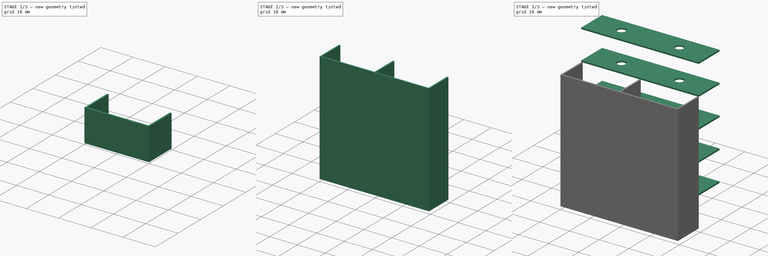
[diagram: build sequence overview — one tinted view per stage of 3, left to right]
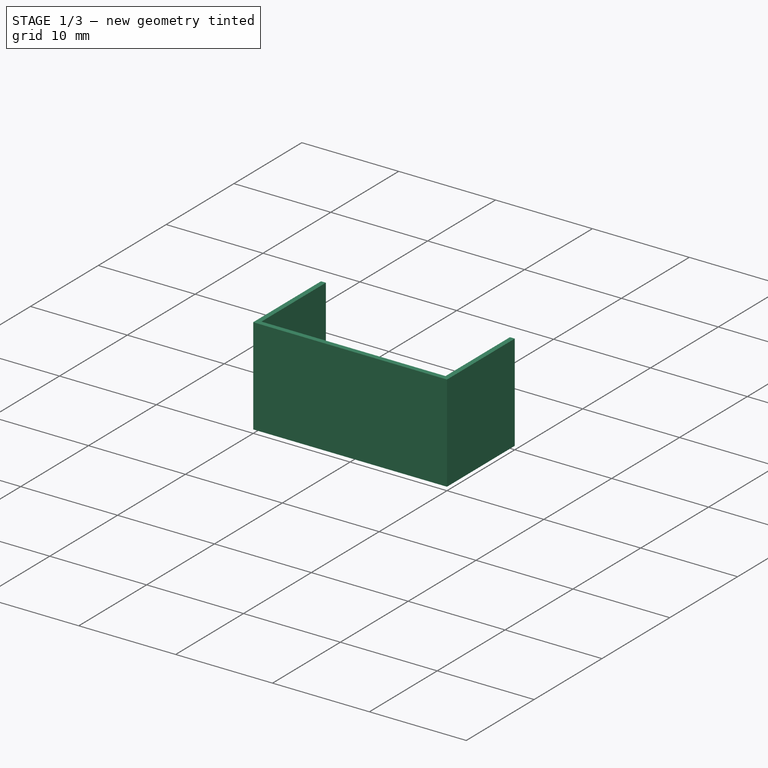
[diagram: stage 1 of 3 — iso view after this stage's code; geometry added in this stage tinted green]
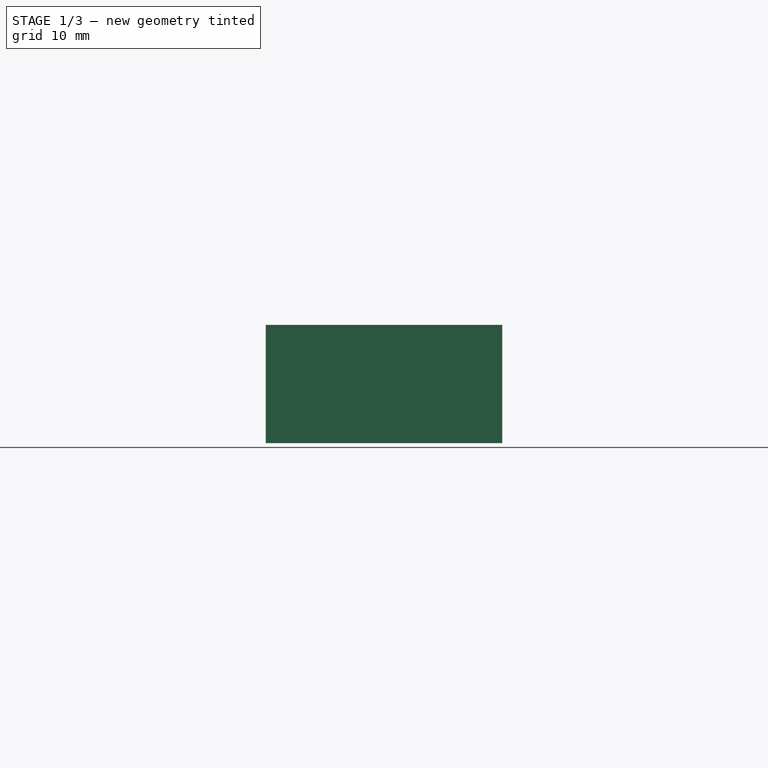
[diagram: stage 1 of 3 — front view after this stage's code; geometry added in this stage tinted green]
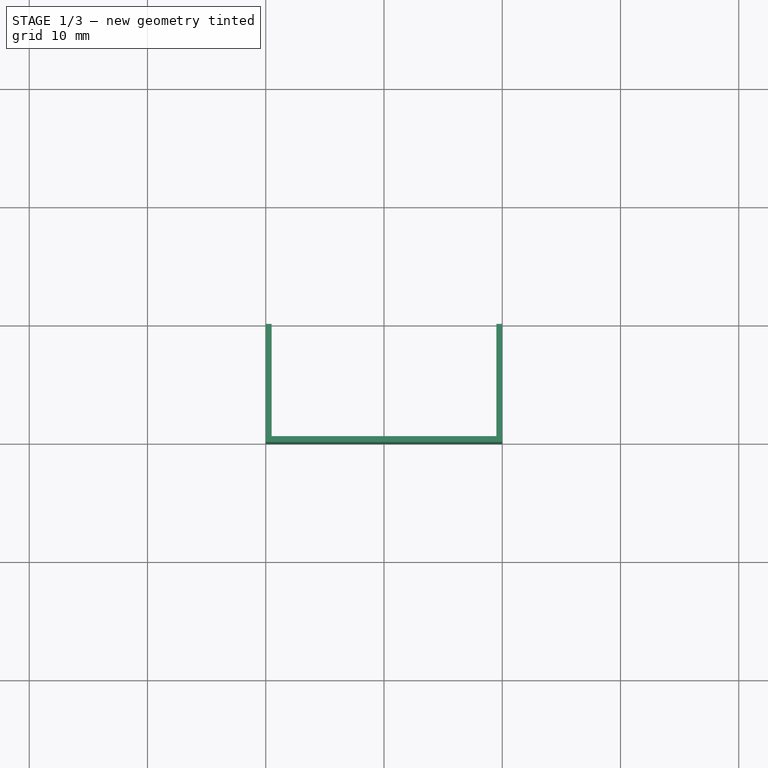
[diagram: stage 1 of 3 — top view after this stage's code; geometry added in this stage tinted green]
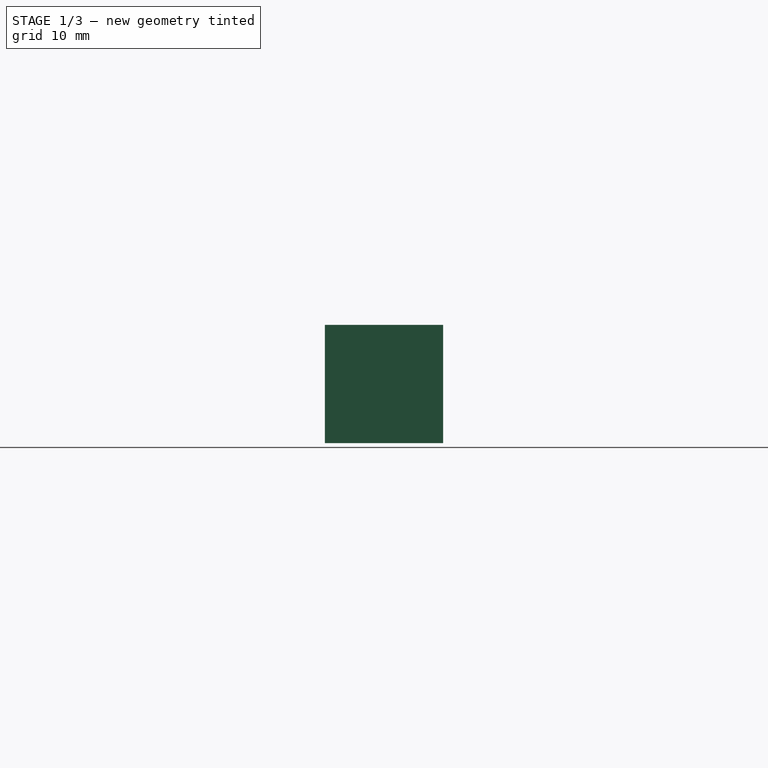
[diagram: stage 1 of 3 — right view after this stage's code; geometry added in this stage tinted green]
FCSTD DOCUMENT  (FreeCAD 0.19R)
Label: ARMARIO
License: All rights reserved
LicenseURL: http://en.wikipedia.org/wiki/All_rights_reserved
objects: Sketcher::SketchObject×2, Part::Extrusion×2, Part::FeaturePython×2, Spreadsheet::Sheet×1, Part::MultiFuse×1
note: 7 computed .brp shape members not serialized (recipe doc carries the construction recipe); baked Part::Feature solids carry a one-line shape summary decoded from their .brp

FEATURE [Spreadsheet::Sheet] Spreadsheet
  cells = A1=largura; B1(largura)=10; A2=altura; B2(altura)==largura; A3=comprimento; B3(comprimento)==2 * largura; A4=espessura; B4(espessura)==0.05 * largura; A5=furo; B5(furo)==espessura
FEATURE [Sketcher::SketchObject] Sketch
  expr: Constraints[10] = Spreadsheet.largura
  expr: Constraints[9] = Spreadsheet.comprimento
  sketch-geometry (9):
    g0: LineSegment StartX=0 StartY=0 StartZ=0 EndX=20 EndY=0 EndZ=0
    g1: LineSegment StartX=20 StartY=0 StartZ=0 EndX=20 EndY=10 EndZ=0
    g2: LineSegment StartX=20 StartY=10 StartZ=0 EndX=0 EndY=10 EndZ=0
    g3: LineSegment StartX=0 StartY=10 StartZ=0 EndX=0 EndY=0 EndZ=0
    g4: LineSegment [constr] StartX=20 StartY=5 StartZ=0 EndX=10 EndY=5 EndZ=0
    g5: LineSegment [constr] StartX=10 StartY=5 StartZ=0 EndX=0 EndY=5 EndZ=0
    g6: LineSegment [constr] StartX=10 StartY=5 StartZ=0 EndX=10 EndY=10 EndZ=0
    g7: LineSegment [constr] StartX=10 StartY=5 StartZ=0 EndX=10 EndY=0 EndZ=0
    g8: Circle CenterX=10 CenterY=5 CenterZ=0 NormalX=0 NormalY=0 NormalZ=1 AngleXU=0 Radius=1.41893
  constraints (24):
    c: Coincident(g0,g1)
    c: Coincident(g1,g2)
    c: Coincident(g2,g3)
    c: Coincident(g3,g0)
    c: Horizontal(g0)
    c: Horizontal(g2)
    c: Vertical(g1)
    c: Vertical(g3)
    c: Coincident(g0,g-1)
    c: DistanceX(g2,g2) = 20
    c: DistanceY(g3,g3) = 10
    c: PointOnObject(g4,g1)
    c: Horizontal(g4)
    c: Coincident(g4,g5)
    c: PointOnObject(g5,g3)
    c: Horizontal(g5)
    c: Coincident(g4,g6)
    c: PointOnObject(g6,g2)
    c: Vertical(g6)
    c: Coincident(g4,g7)
    c: PointOnObject(g7,g0)
    c: Vertical(g7)
    c: Equal(g4,g5)
    c: Equal(g6,g7)
FEATURE [Part::Extrusion] Extrude  label="Base"
  Base = -> Sketch
  Dir = (0,0,1)
  DirMode = 2
  FaceMakerClass = Part::FaceMakerBullseye
  LengthFwd = 0.5
  LengthRev = 0
  Solid = true
  Symmetric = false
  expr: LengthFwd = Spreadsheet.espessura
FEATURE [Sketcher::SketchObject] Sketch001
  MapMode = 5
  Placement = pos=(0,0,0) rot=(1,0,0;3.14159rad)
  Support = -> [Extrude]
  expr: Constraints[24] = Spreadsheet.comprimento
  expr: Constraints[23] = Spreadsheet.largura
  expr: Constraints[22] = Spreadsheet.espessura
  sketch-geometry (9):
    g0: LineSegment StartX=0 StartY=0 StartZ=0 EndX=0.5 EndY=0 EndZ=0
    g1: LineSegment StartX=20 StartY=0 StartZ=0 EndX=20 EndY=10 EndZ=0
    g2: LineSegment StartX=20 StartY=10 StartZ=0 EndX=0 EndY=10 EndZ=0
    g3: LineSegment StartX=0 StartY=10 StartZ=0 EndX=0 EndY=0 EndZ=0
    g4: LineSegment StartX=19.5 StartY=0 StartZ=0 EndX=19.5 EndY=9.5 EndZ=0
    g5: LineSegment StartX=19.5 StartY=9.5 StartZ=0 EndX=0.5 EndY=9.5 EndZ=0
    g6: LineSegment StartX=0.5 StartY=9.5 StartZ=0 EndX=0.5 EndY=0 EndZ=0
    g7: LineSegment StartX=19.5 StartY=0 StartZ=0 EndX=20 EndY=0 EndZ=0
    g8: LineSegment [constr] StartX=10 StartY=10 StartZ=0 EndX=10 EndY=9.5 EndZ=0
  constraints (25):
    c: Coincident(g7,g1)
    c: Coincident(g1,g2)
    c: Coincident(g2,g3)
    c: Coincident(g3,g0)
    c: Horizontal(g0)
    c: Horizontal(g2)
    c: Vertical(g1)
    c: Vertical(g3)
    c: Coincident(g0,g-1)
    c: Coincident(g4,g5)
    c: Coincident(g5,g6)
    c: Horizontal(g5)
    c: Vertical(g4)
    c: Vertical(g6)
    c: Coincident(g0,g6)
    c: Coincident(g7,g4)
    c: Tangent(g0,g7)
    c: Equal(g0,g7)
    c: PointOnObject(g8,g5)
    c: Vertical(g8)
    c: Symmetric(g2,g2,g8)
    c: Equal(g8,g0)
    c: DistanceX(g0,g0) = 0.5
    c: DistanceY(g3,g3) = 10
    c: DistanceX(g2,g2) = 20
FEATURE [Part::Extrusion] Extrude001  label="Lateral"
  Base = -> Sketch001
  Dir = (0,0,-1)
  DirMode = 2
  FaceMakerClass = Part::FaceMakerBullseye
  LengthFwd = 10
  LengthRev = 0
  Solid = true
  Symmetric = false
  expr: LengthFwd = Spreadsheet.altura
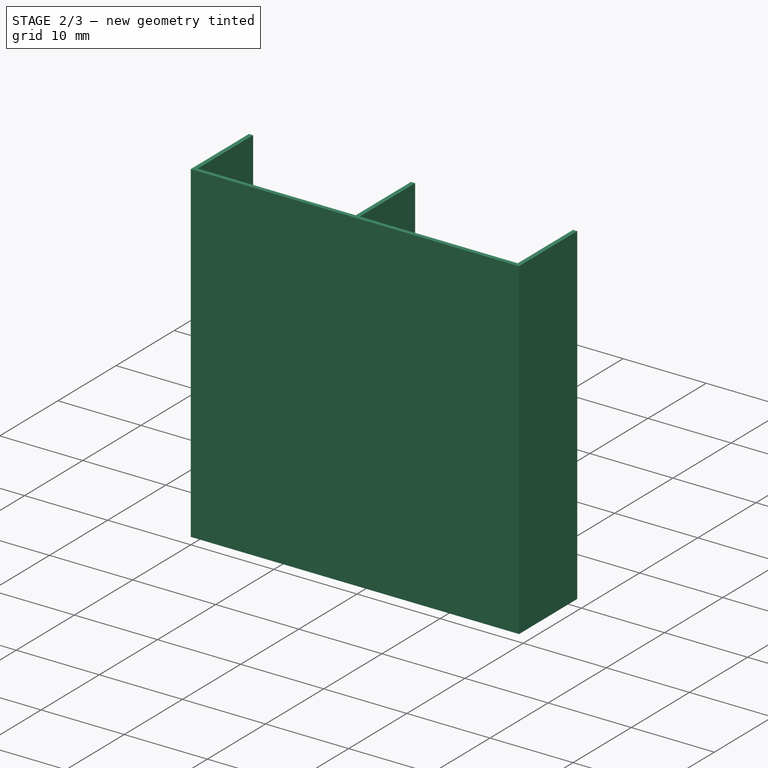
[diagram: stage 2 of 3 — iso view after this stage's code; geometry added in this stage tinted green]
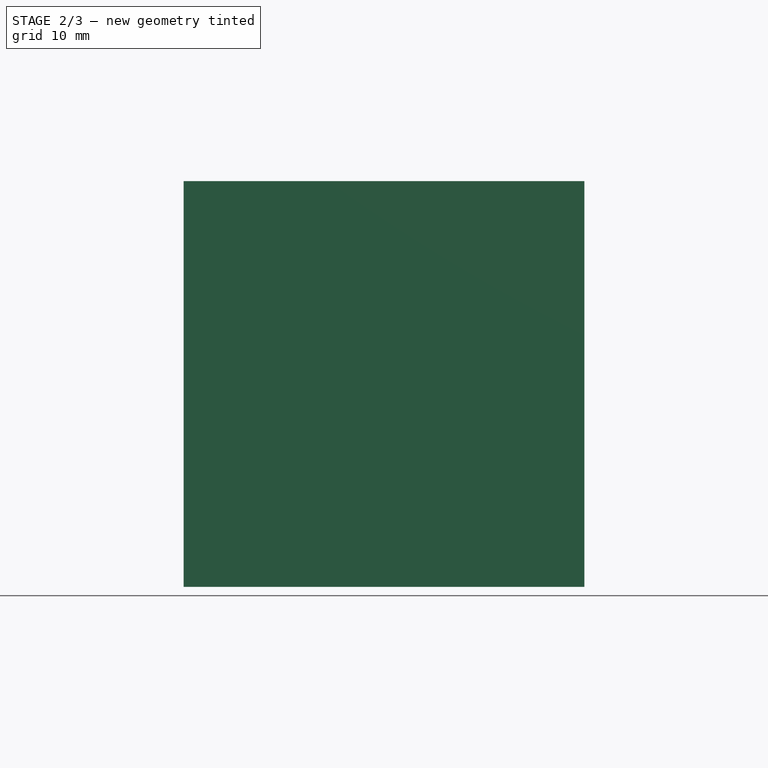
[diagram: stage 2 of 3 — front view after this stage's code; geometry added in this stage tinted green]
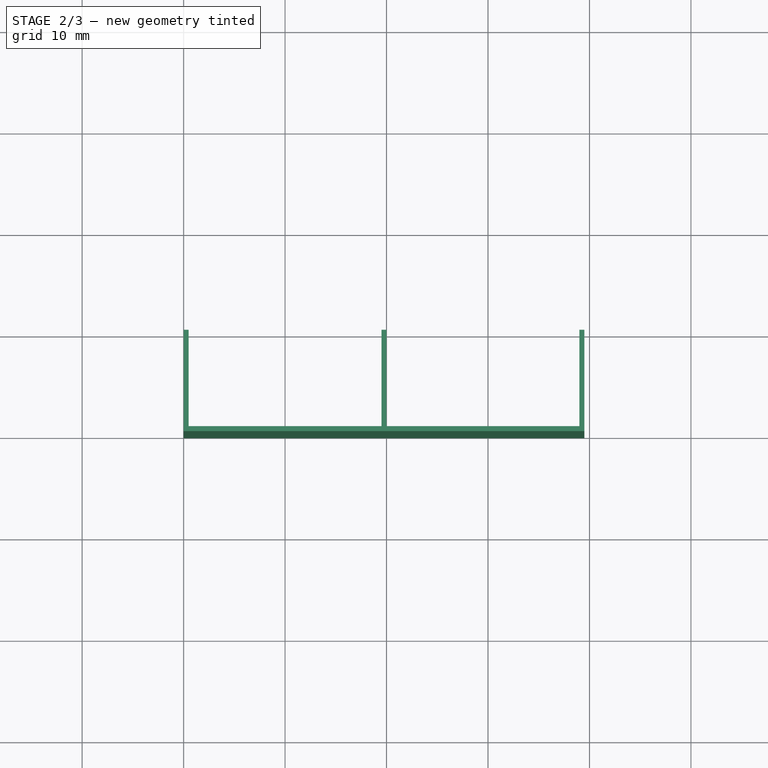
[diagram: stage 2 of 3 — top view after this stage's code; geometry added in this stage tinted green]
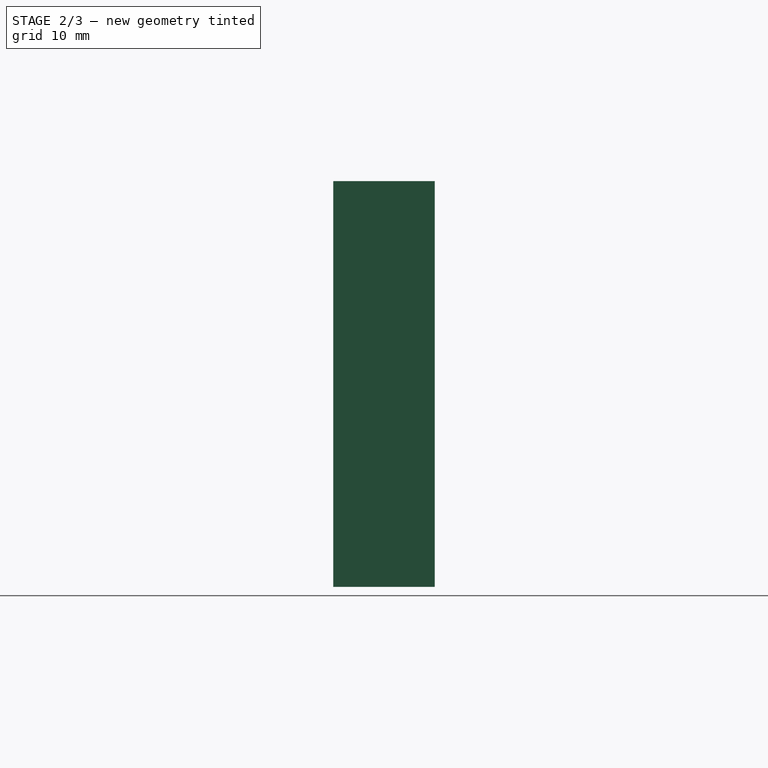
[diagram: stage 2 of 3 — right view after this stage's code; geometry added in this stage tinted green]
FEATURE [Part::FeaturePython] Array001  # Draft array (typed FeaturePython)
  Angle = 360
  ArrayType = 0
  Axis = (0,0,1)
  Base = -> Extrude001
  Center = (0,0,0)
  Count = 8
  ExpandArray = false
  Fuse = true
  IntervalAxis = (0,0,0)
  IntervalX = (19.5,0,0)
  IntervalY = (0,100,0)
  IntervalZ = (0,0,10)
  LinkTransform = true
  NumberCircles = 3
  NumberPolar = 5
  NumberX = 2
  NumberY = 1
  NumberZ = 4
  PlacementList = 8 placements: [(0,0,0),(0,0,10),(0,0,20),(0,0,30),(19.5,0,0),(19.5,0,10),(19.5,0,20),(19.5,0,30)]
  RadialDistance = 50
  ScaleList = (8) [(1,1,1),(1,1,1),(1,1,1),(1,1,1),(1,1,1),(1,1,1),(1,1,1),(1,1,1)]
  Symmetry = 1
  TangentialDistance = 25
  expr: .IntervalZ.z = Spreadsheet.altura
  expr: .IntervalX.x = Spreadsheet.comprimento - Spreadsheet.espessura
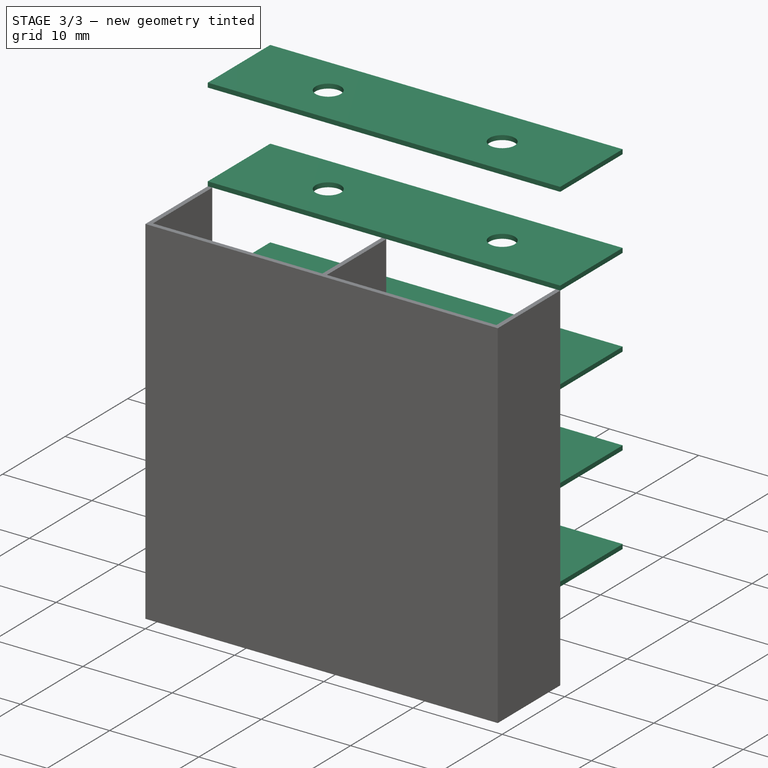
[diagram: stage 3 of 3 — iso view after this stage's code; geometry added in this stage tinted green]
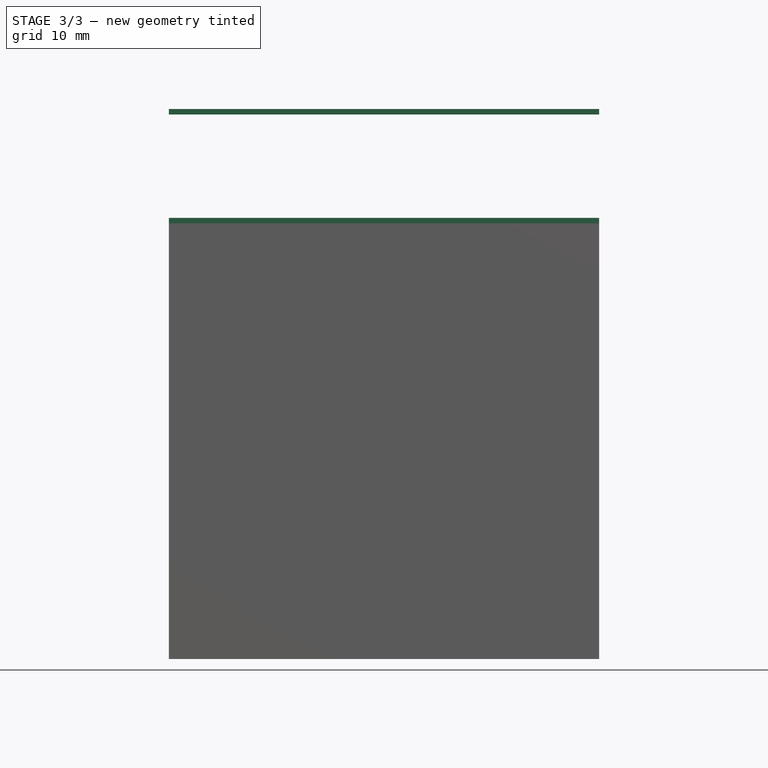
[diagram: stage 3 of 3 — front view after this stage's code; geometry added in this stage tinted green]
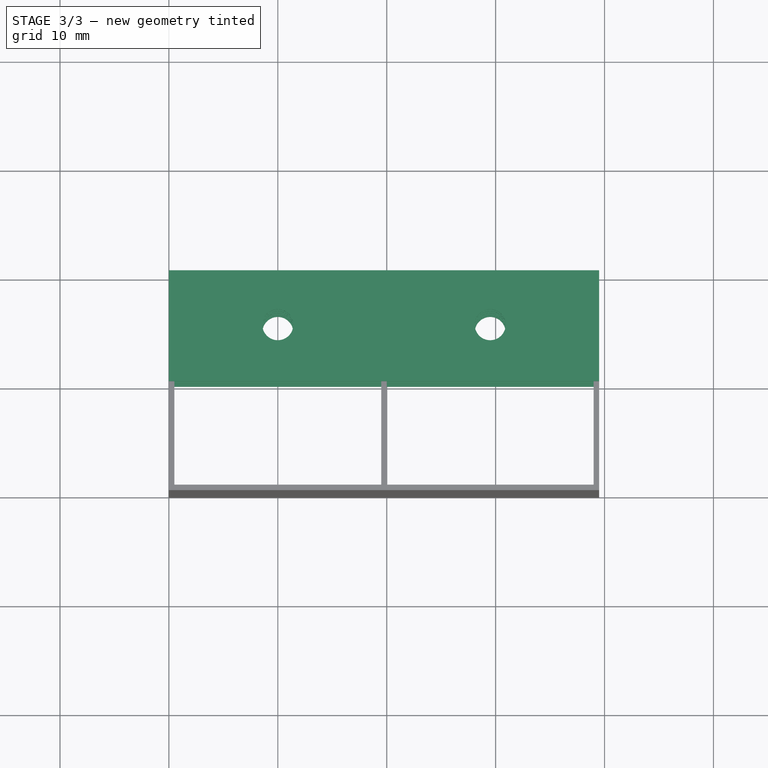
[diagram: stage 3 of 3 — top view after this stage's code; geometry added in this stage tinted green]
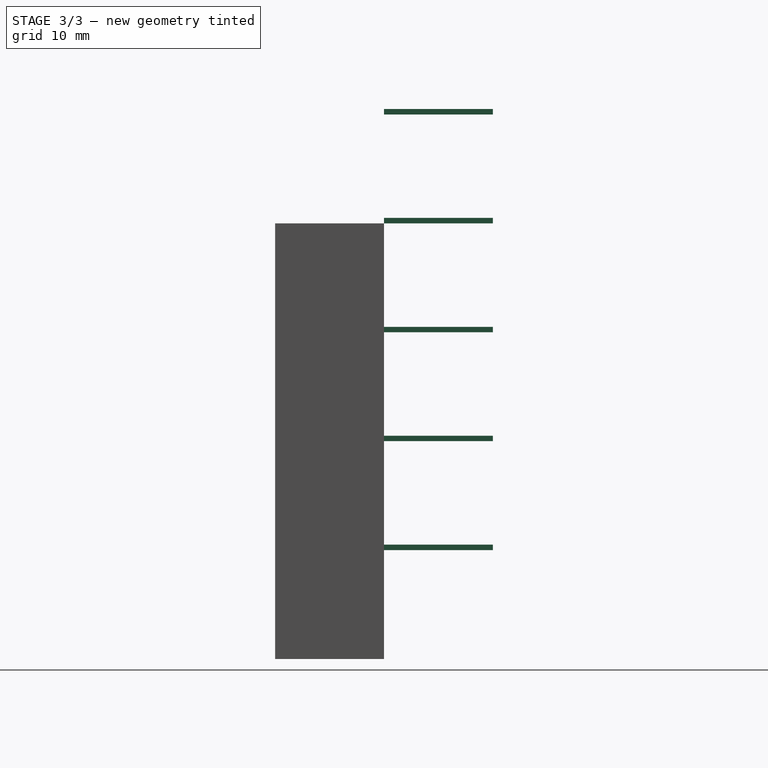
[diagram: stage 3 of 3 — right view after this stage's code; geometry added in this stage tinted green]
FEATURE [Part::FeaturePython] Array  # Draft array (typed FeaturePython)
  Angle = 360
  ArrayType = 0
  Axis = (0,0,1)
  Base = -> Extrude
  Center = (0,0,0)
  Count = 10
  ExpandArray = false
  Fuse = true
  IntervalAxis = (0,0,0)
  IntervalX = (19.5,0,0)
  IntervalY = (0,100,0)
  IntervalZ = (0,0,10)
  LinkTransform = true
  NumberCircles = 3
  NumberPolar = 5
  NumberX = 2
  NumberY = 1
  NumberZ = 5
  PlacementList = 10 placements: [(0,0,0),(0,0,10),(0,0,20),(0,0,30),(0,0,40),(19.5,0,0),(19.5,0,10),(19.5,0,20),(19.5,0,30),(19.5,0,40)]
  RadialDistance = 50
  ScaleList = (10) [(1,1,1),(1,1,1),(1,1,1),(1,1,1),(1,1,1),(1,1,1),(1,1,1),(1,1,1),(1,1,1),(1,1,1)]
  Symmetry = 1
  TangentialDistance = 25
  expr: .IntervalZ.z = Spreadsheet.altura
  expr: .IntervalX.x = Spreadsheet.comprimento - Spreadsheet.espessura
FEATURE [Part::MultiFuse] Fusion
  Refine = true
  Shapes = -> [Array,Array001]
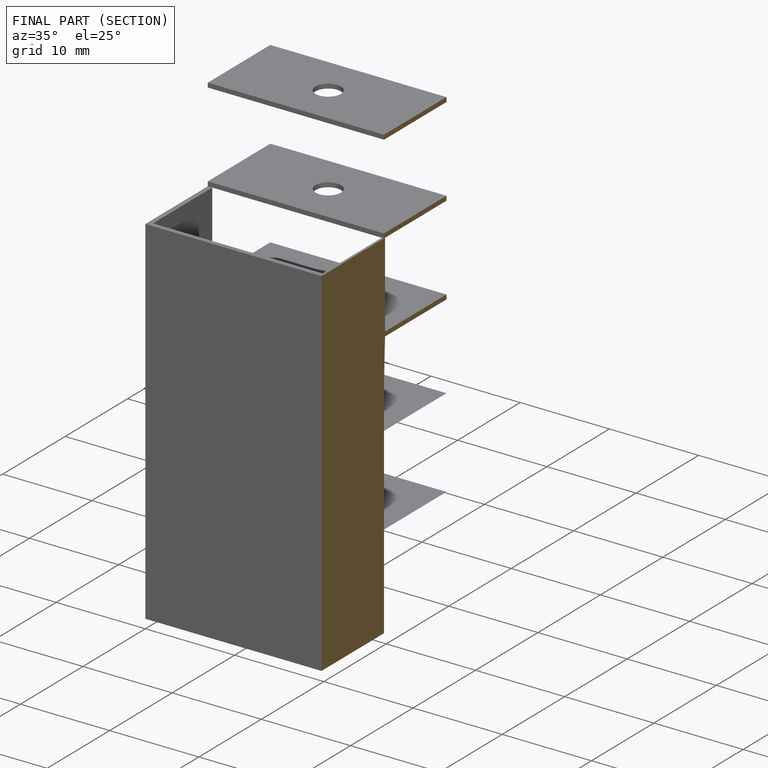
[diagram: finished part — half-section view (interior)]
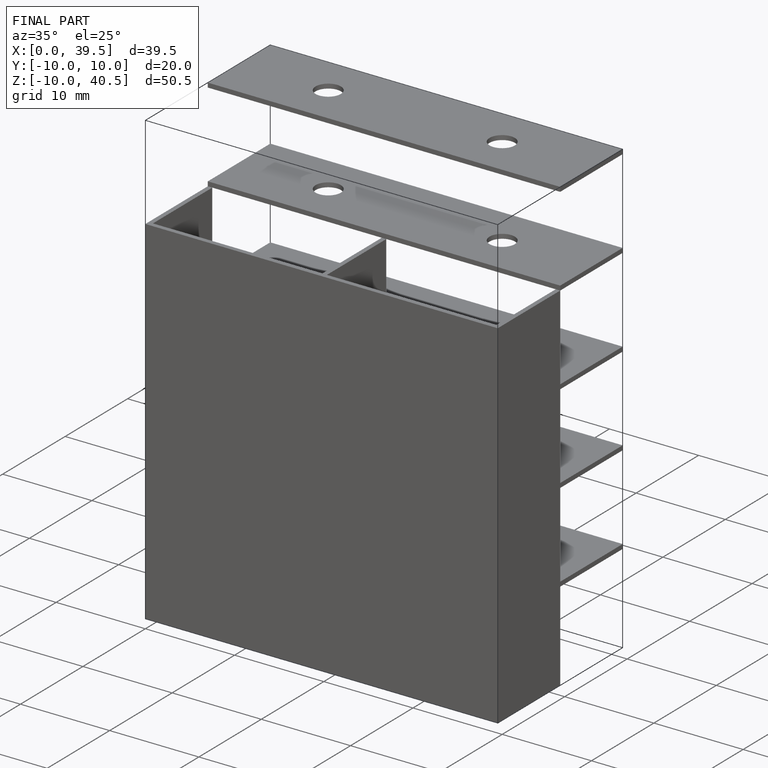
[diagram: finished part — iso view with bounding-box wireframe]
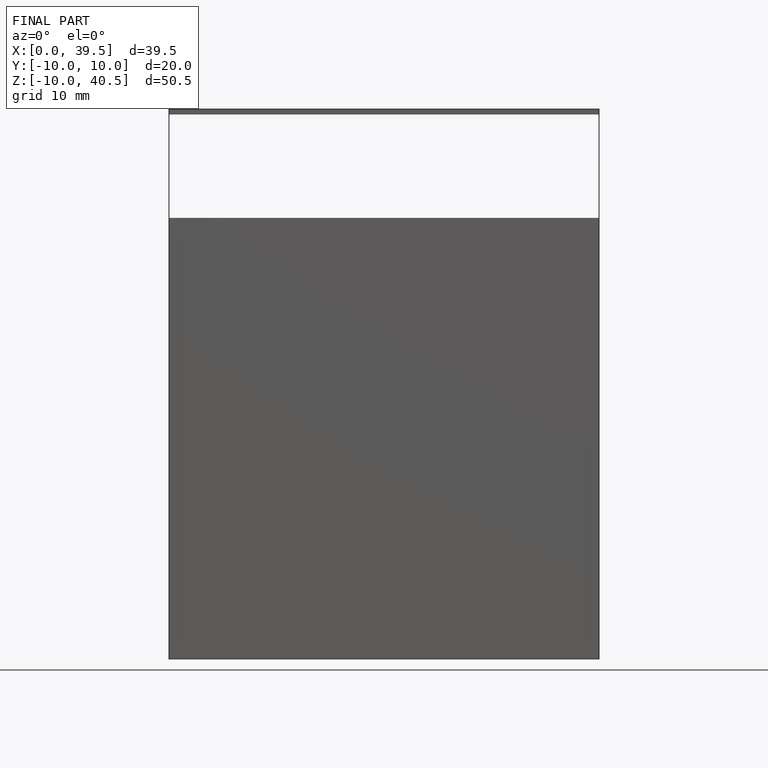
[diagram: finished part — front view with bounding-box wireframe]
